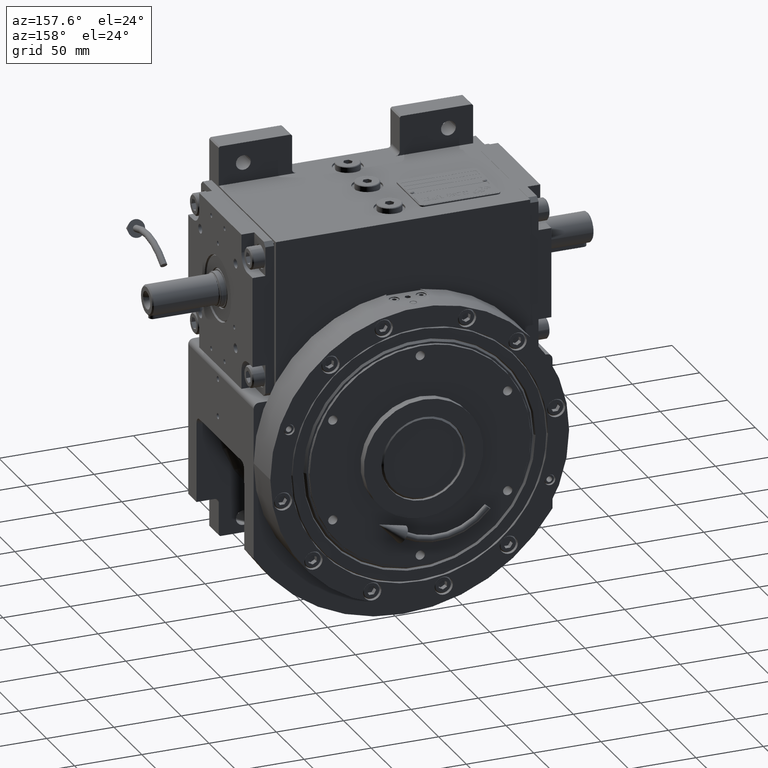
[diagram: clean part render]
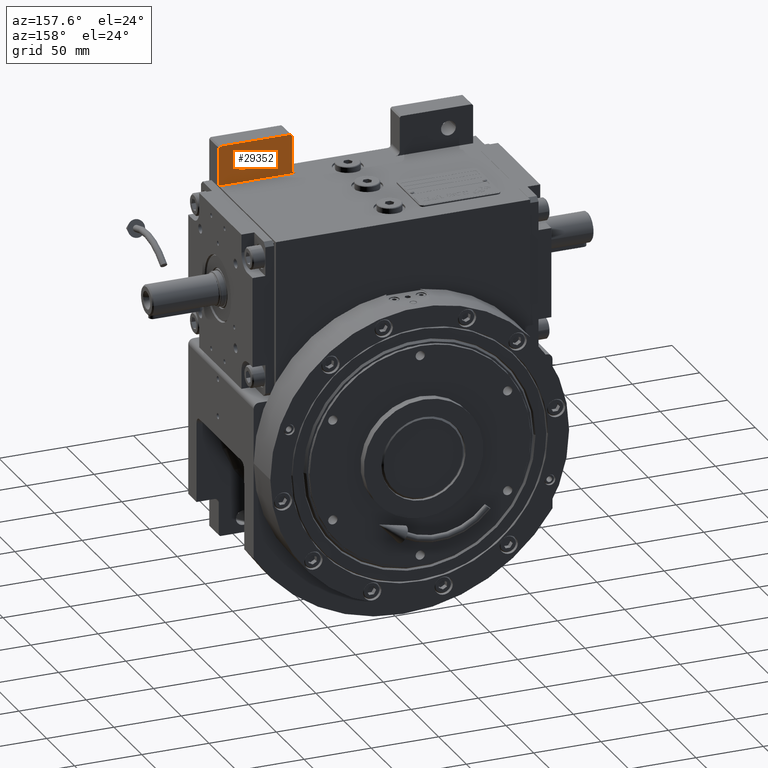
[diagram: same view with one face highlighted and labeled with its STEP entity id]
A machine part, auxiliary view. The second image highlights one B-rep face of the part: STEP entity #29352.
In plain terms, the highlighted planar face has unit normal (0, -1, 0).
Its self-contained STEP definition (entity closure, byte-faithful):
#1809 = EDGE_CURVE ( 'NONE', #58516, #40236, #9545, .T. ) ;
#2220 = VECTOR ( 'NONE', #36725, 1000.000000000000000 ) ;
#2325 = CARTESIAN_POINT ( 'NONE',  ( 39.99999999999929656, -38.50000000000000000, 192.0000000000000000 ) ) ;
#2993 = VERTEX_POINT ( 'NONE', #44380 ) ;
#3648 = VECTOR ( 'NONE', #5482, 1000.000000000000000 ) ;
#5482 = DIRECTION ( 'NONE',  ( 0.000000000000000000, 0.000000000000000000, -1.000000000000000000 ) ) ;
#6056 = CARTESIAN_POINT ( 'NONE',  ( 70.70000000000000284, -38.50000000000000000, 178.0000000000000000 ) ) ;
#9000 = CARTESIAN_POINT ( 'NONE',  ( 36.99999999999934630, -38.50000000000000000, 163.5000000000000000 ) ) ;
#9545 = LINE ( 'NONE', #25450, #3648 ) ;
#9912 = DIRECTION ( 'NONE',  ( -1.000000000000000000, 0.000000000000000000, 0.000000000000000000 ) ) ;
#10206 = EDGE_CURVE ( 'NONE', #23171, #14243, #64393, .T. ) ;
#12358 = ORIENTED_EDGE ( 'NONE', *, *, #16990, .F. ) ;
#12517 = DIRECTION ( 'NONE',  ( -1.000000000000000000, 0.000000000000000000, 0.000000000000000000 ) ) ;
#13268 = CARTESIAN_POINT ( 'NONE',  ( 94.50000000000000000, -38.50000000000000000, 163.5000000000000000 ) ) ;
#13633 = DIRECTION ( 'NONE',  ( 0.000000000000000000, -1.000000000000000000, 0.000000000000000000 ) ) ;
#14243 = VERTEX_POINT ( 'NONE', #20492 ) ;
#14928 = VERTEX_POINT ( 'NONE', #13268 ) ;
#16424 = CARTESIAN_POINT ( 'NONE',  ( 76.20000000000000284, -38.50000000000000000, 178.0000000000000000 ) ) ;
#16990 = EDGE_CURVE ( 'NONE', #32772, #2993, #23000, .T. ) ;
#17692 = ORIENTED_EDGE ( 'NONE', *, *, #52880, .T. ) ;
#18567 = DIRECTION ( 'NONE',  ( 1.000000000000000000, 0.000000000000000000, 0.000000000000000000 ) ) ;
#18818 = ORIENTED_EDGE ( 'NONE', *, *, #49198, .T. ) ;
#19243 = EDGE_CURVE ( 'NONE', #25026, #14928, #66220, .T. ) ;
#19470 = VERTEX_POINT ( 'NONE', #37799 ) ;
#20492 = CARTESIAN_POINT ( 'NONE',  ( 94.50000000000000000, -38.50000000000000000, 192.0000000000000000 ) ) ;
#20672 = EDGE_CURVE ( 'NONE', #23171, #19470, #42442, .T. ) ;
#21170 = DIRECTION ( 'NONE',  ( 1.000000000000000000, 0.000000000000000000, 0.000000000000000000 ) ) ;
#21490 = DIRECTION ( 'NONE',  ( 0.000000000000000000, 1.000000000000000000, 0.000000000000000000 ) ) ;
#22956 = DIRECTION ( 'NONE',  ( 0.7071067811865474617, 0.000000000000000000, 0.7071067811865474617 ) ) ;
#23000 = CIRCLE ( 'NONE', #41319, 5.500000000000005329 ) ;
#23171 = VERTEX_POINT ( 'NONE', #65273 ) ;
#24088 = VECTOR ( 'NONE', #64715, 1000.000000000000114 ) ;
#25026 = VERTEX_POINT ( 'NONE', #9000 ) ;
#25450 = CARTESIAN_POINT ( 'NONE',  ( 39.99999999999929656, -38.50000000000000000, 192.0000000000000000 ) ) ;
#25995 = VECTOR ( 'NONE', #22956, 1000.000000000000114 ) ;
#26080 = ORIENTED_EDGE ( 'NONE', *, *, #31752, .F. ) ;
#26740 = PLANE ( 'NONE',  #44159 ) ;
#27606 = LINE ( 'NONE', #37730, #57434 ) ;
#29352 = ADVANCED_FACE ( 'NONE', ( #42594, #41920 ), #26740, .F. ) ;
#30115 = ORIENTED_EDGE ( 'NONE', *, *, #20672, .F. ) ;
#31752 = EDGE_CURVE ( 'NONE', #2993, #32772, #54195, .T. ) ;
#32486 = DIRECTION ( 'NONE',  ( 0.000000000000000000, -1.000000000000000000, 0.000000000000000000 ) ) ;
#32772 = VERTEX_POINT ( 'NONE', #6056 ) ;
#34045 = EDGE_CURVE ( 'NONE', #14928, #14243, #27606, .T. ) ;
#35008 = EDGE_LOOP ( 'NONE', ( #30115, #36974, #49012, #47803, #18818, #53589, #17692 ) ) ;
#36725 = DIRECTION ( 'NONE',  ( -1.000000000000000000, 0.000000000000000000, 0.000000000000000000 ) ) ;
#36861 = CARTESIAN_POINT ( 'NONE',  ( 39.99999999999929656, -38.50000000000000000, 166.5000000000000000 ) ) ;
#36974 = ORIENTED_EDGE ( 'NONE', *, *, #10206, .T. ) ;
#37292 = CIRCLE ( 'NONE', #56741, 3.000000000000002665 ) ;
#37730 = CARTESIAN_POINT ( 'NONE',  ( 94.50000000000000000, -38.50000000000000000, 163.5000000000000000 ) ) ;
#37799 = CARTESIAN_POINT ( 'NONE',  ( 40.99999999999930367, -38.50000000000000000, 193.0000000000000000 ) ) ;
#37881 = CARTESIAN_POINT ( 'NONE',  ( 0.000000000000000000, -38.50000000000000000, 0.000000000000000000 ) ) ;
#39667 = DIRECTION ( 'NONE',  ( -9.251858538542962756E-15, 0.000000000000000000, -1.000000000000000000 ) ) ;
#39851 = CARTESIAN_POINT ( 'NONE',  ( 36.99999999999934630, -38.50000000000000000, 163.5000000000000000 ) ) ;
#40236 = VERTEX_POINT ( 'NONE', #36861 ) ;
#41319 = AXIS2_PLACEMENT_3D ( 'NONE', #56218, #44727, #9912 ) ;
#41920 = FACE_OUTER_BOUND ( 'NONE', #35008, .T. ) ;
#42442 = LINE ( 'NONE', #62430, #2220 ) ;
#42594 = FACE_BOUND ( 'NONE', #59106, .T. ) ;
#44159 = AXIS2_PLACEMENT_3D ( 'NONE', #37881, #32486, #12517 ) ;
#44380 = CARTESIAN_POINT ( 'NONE',  ( 81.69999999999998863, -38.50000000000000000, 178.0000000000000000 ) ) ;
#44727 = DIRECTION ( 'NONE',  ( 0.000000000000000000, 1.000000000000000000, 0.000000000000000000 ) ) ;
#47803 = ORIENTED_EDGE ( 'NONE', *, *, #19243, .F. ) ;
#49012 = ORIENTED_EDGE ( 'NONE', *, *, #34045, .F. ) ;
#49198 = EDGE_CURVE ( 'NONE', #25026, #40236, #37292, .T. ) ;
#52880 = EDGE_CURVE ( 'NONE', #58516, #19470, #53726, .T. ) ;
#53589 = ORIENTED_EDGE ( 'NONE', *, *, #1809, .F. ) ;
#53726 = LINE ( 'NONE', #2325, #25995 ) ;
#54195 = CIRCLE ( 'NONE', #62832, 5.500000000000005329 ) ;
#54910 = CARTESIAN_POINT ( 'NONE',  ( 93.50000000000000000, -38.50000000000000000, 193.0000000000000000 ) ) ;
#56218 = CARTESIAN_POINT ( 'NONE',  ( 76.20000000000000284, -38.50000000000000000, 178.0000000000000000 ) ) ;
#56741 = AXIS2_PLACEMENT_3D ( 'NONE', #64703, #13633, #39667 ) ;
#57434 = VECTOR ( 'NONE', #58363, 1000.000000000000000 ) ;
#58363 = DIRECTION ( 'NONE',  ( 0.000000000000000000, 0.000000000000000000, 1.000000000000000000 ) ) ;
#58516 = VERTEX_POINT ( 'NONE', #60204 ) ;
#59106 = EDGE_LOOP ( 'NONE', ( #26080, #12358 ) ) ;
#60204 = CARTESIAN_POINT ( 'NONE',  ( 39.99999999999929656, -38.50000000000000000, 192.0000000000000000 ) ) ;
#62430 = CARTESIAN_POINT ( 'NONE',  ( 93.50000000000000000, -38.50000000000000000, 193.0000000000000000 ) ) ;
#62832 = AXIS2_PLACEMENT_3D ( 'NONE', #16424, #21490, #21170 ) ;
#63829 = VECTOR ( 'NONE', #18567, 1000.000000000000000 ) ;
#64393 = LINE ( 'NONE', #54910, #24088 ) ;
#64703 = CARTESIAN_POINT ( 'NONE',  ( 36.99999999999934630, -38.50000000000000000, 166.5000000000000000 ) ) ;
#64715 = DIRECTION ( 'NONE',  ( 0.7071067811865474617, 0.000000000000000000, -0.7071067811865474617 ) ) ;
#65273 = CARTESIAN_POINT ( 'NONE',  ( 93.50000000000000000, -38.50000000000000000, 193.0000000000000000 ) ) ;
#66220 = LINE ( 'NONE', #39851, #63829 ) ;